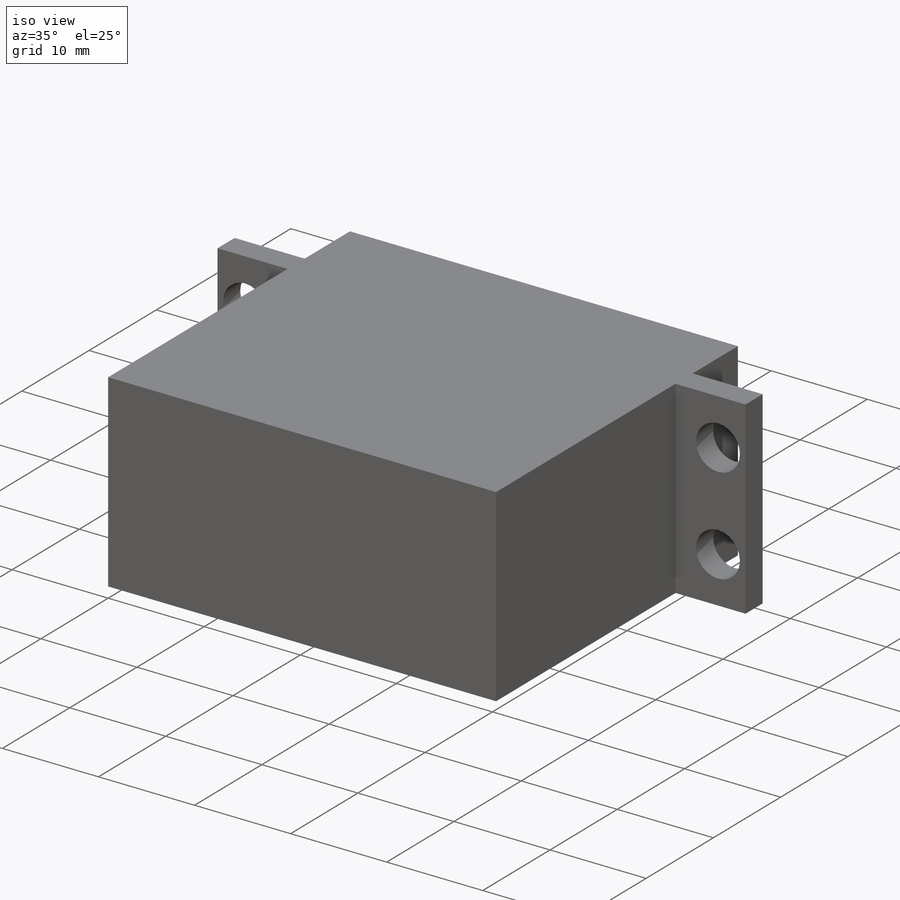
[diagram: iso view]
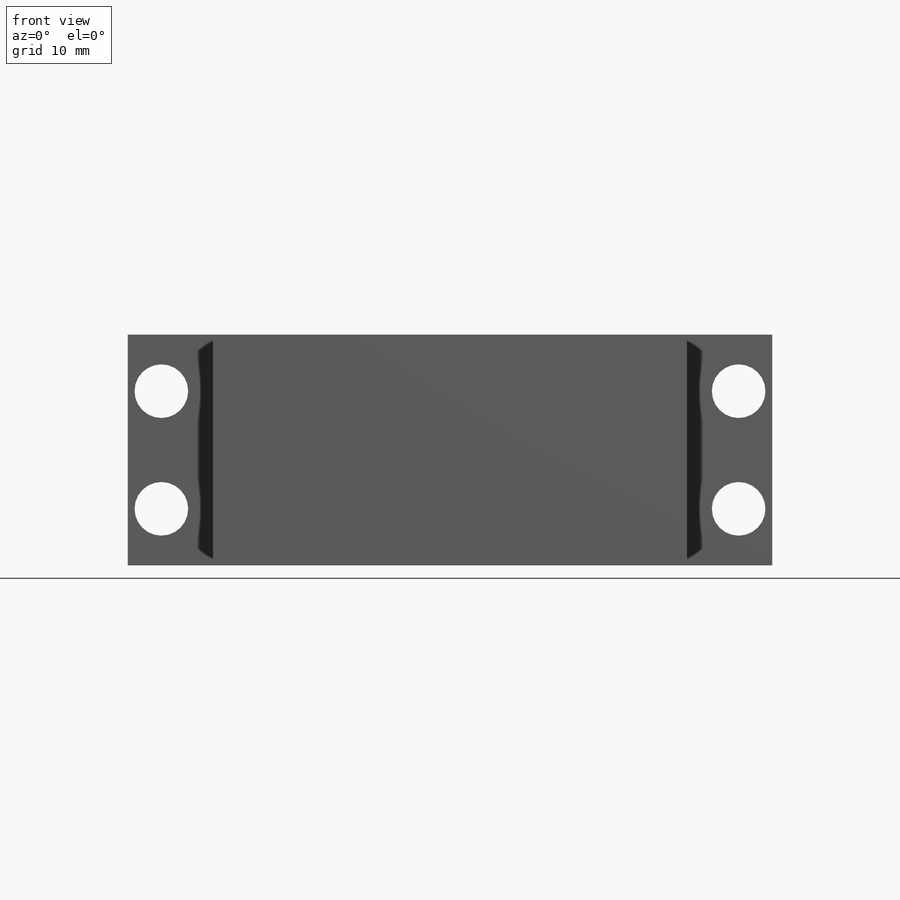
[diagram: front view]
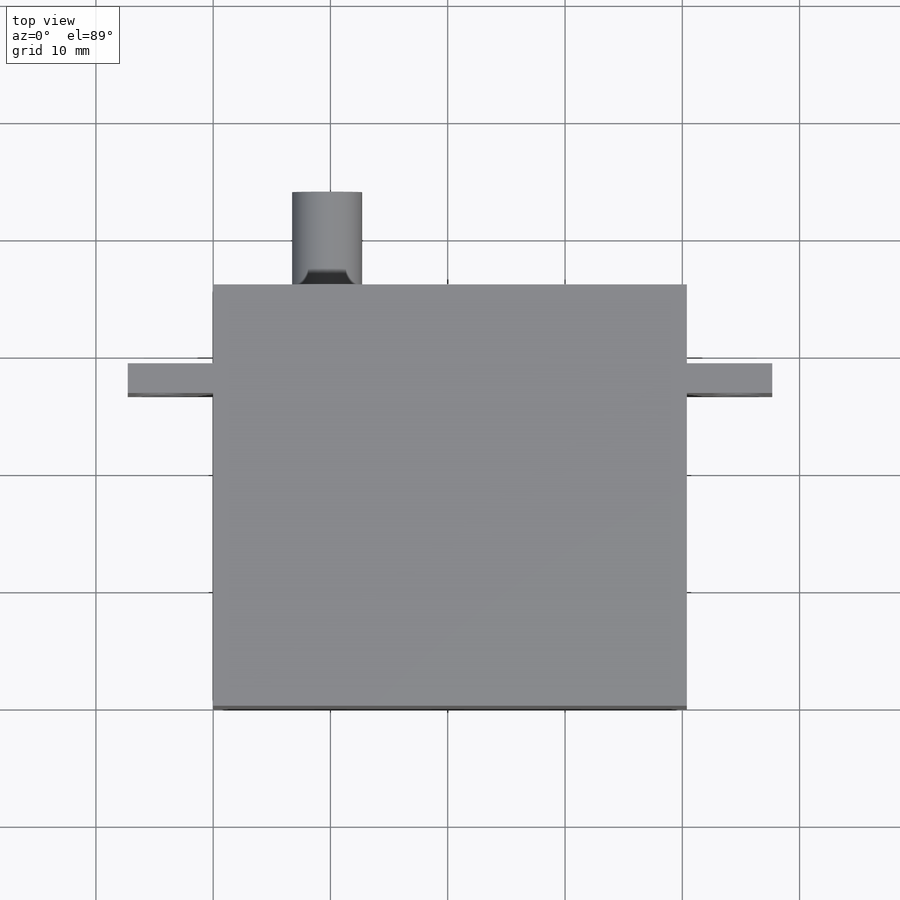
[diagram: top view]
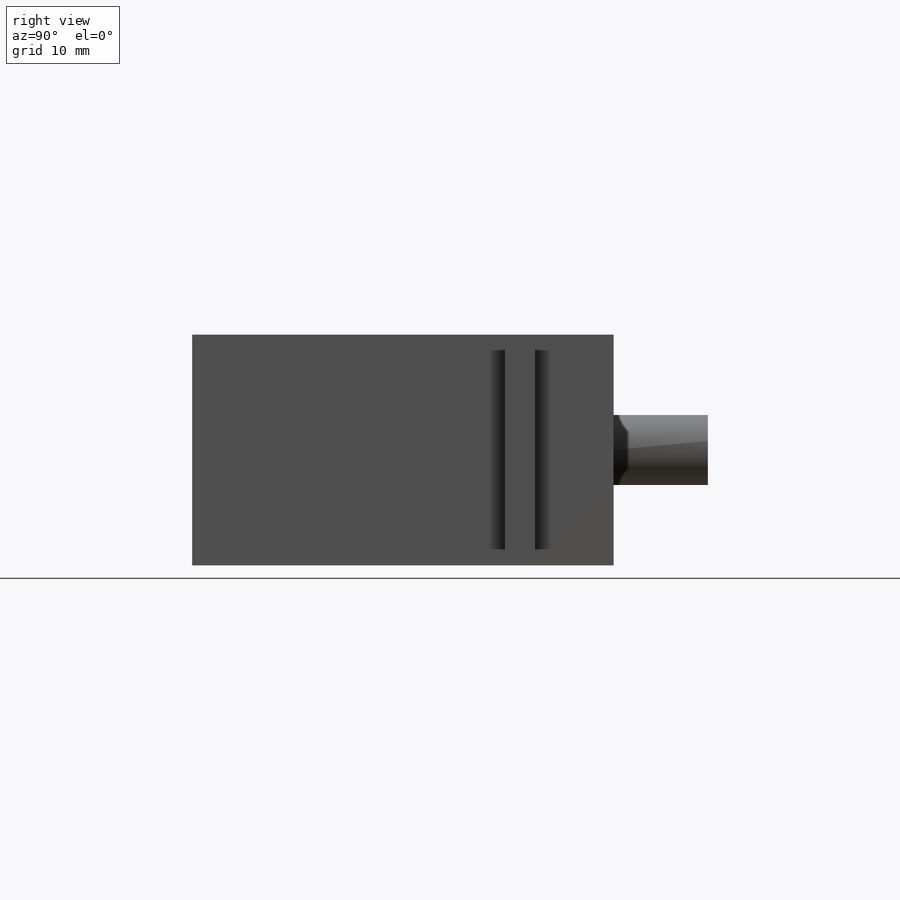
[diagram: right view]
SOLIDWORKS PART (.sldprt)
format: sldprt  version: not decoded by parser v0  size: 196,096 bytes
history: native  units: mm
features: sketch x3, extrude x2, material x1, cut_extrude x1 (+11 scaffold rows collapsed)
feature tree (18):
  scaffold x11  (default folders/planes/origin — collapsed)
  material  "ABS PC"
  sketch  "Sketch1"  dims[D1=35.941mm D2=40.386mm D3=7.2898mm D4=7.2898mm D5=2.54mm D6=2.54mm D7=26.67mm D8=26.67mm]
  extrude  "Boss-Extrude1"  Depth=19.685mm
  sketch  "Sketch3"  dims[D1=5.969mm D2=9.8425mm D3=12.7mm]
  extrude  "Boss-Extrude2"  Depth=8.0264mm
  sketch  "Sketch4"  dims[D9=4.572mm D10=4.572mm D11=4.572mm D12=4.572mm D1=4.826mm D2=2.8702mm D3=4.826mm D4=2.8702mm D5=2.8702mm D6=2.8702mm D7=4.826mm D8=4.826mm]
  cut_extrude  "Cut-Extrude1"  [1 undecoded]
decode coverage: 5 of 6 modeling features carry decoded parameters
note: 1 parameter value undecoded
note: suppression state not decoded; provenance and decode notes live in map.json
